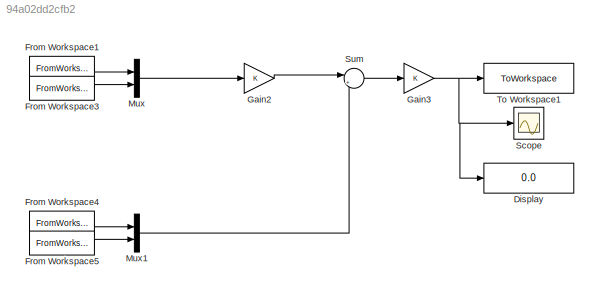
MODEL slx_94a02dd2cfb2
KIND model
CONFIG AbsTol = auto
CONFIG EnableMultiTasking = off
CONFIG FixedStep = auto
CONFIG MaxStep = auto
CONFIG MinStep = auto
CONFIG RelTol = 1e-3
CONFIG SampleTimeConstraint = Unconstrained
CONFIG Solver = VariableStepAuto
CONFIG SolverName = VariableStepAuto
CONFIG StartTime = 0.0
CONFIG StopTime = 0.5
BLOCK [Display] Display
  Decimation = 1
  Ports = [1]
BLOCK [FromWorkspace] From Workspace1
  VariableName = lightPosX
BLOCK [FromWorkspace] From Workspace3
  VariableName = lightPosY
BLOCK [FromWorkspace] From Workspace4
  VariableName = robotPosX
BLOCK [FromWorkspace] From Workspace5
  VariableName = robotPosY
BLOCK [Gain] Gain2
BLOCK [Gain] Gain3
BLOCK [Mux] Mux
  DisplayOption = bar
  Inputs = 2
  Ports = [2, 1]
BLOCK [Mux] Mux1
  DisplayOption = bar
  Inputs = 2
  Ports = [2, 1]
BLOCK [Scope] Scope
  Floating = off
  NumInputPorts = 1
  Ports = [1]
  ScopeSpecificationString = Simulink.scopes.TimeScopeBlockCfg('CurrentConfiguration', extmgr.ConfigurationSet(extmgr.Configuration('Core','General UI',true),extmgr.Configuration('Core','Source UI',true),extmgr.Configuration('Sources','WiredSimulink',true),extmgr.Configuration('Visuals','Time Domain',true,'SerializedDisplays',{struct('MinYLimReal','162.30871','MaxYLimReal','362.30871','YLabelReal','','MinYLimMag','162.30871',...<+1369ch>
BLOCK [Sum] Sum
  Inputs = |+-
  Ports = [2, 1]
BLOCK [ToWorkspace] To Workspace1
  FixptAsFi = on
  MaxDataPoints = inf
  Ports = [1]
  SampleTime = -1
  SaveFormat = Timeseries
  VariableName = position
LINE From Workspace1:1 -> Mux:1
LINE From Workspace3:1 -> Mux:2
LINE From Workspace4:1 -> Mux1:1
LINE From Workspace5:1 -> Mux1:2
LINE Gain2:1 -> Sum:1
NET Gain3:1 -> Display:1, Scope:1, To Workspace1:1
LINE Mux1:1 -> Sum:2
LINE Mux:1 -> Gain2:1
LINE Sum:1 -> Gain3:1
note: NET lines group one-source signal fan-out (src -> all destinations, sorted); 1:1 wires keep LINE
